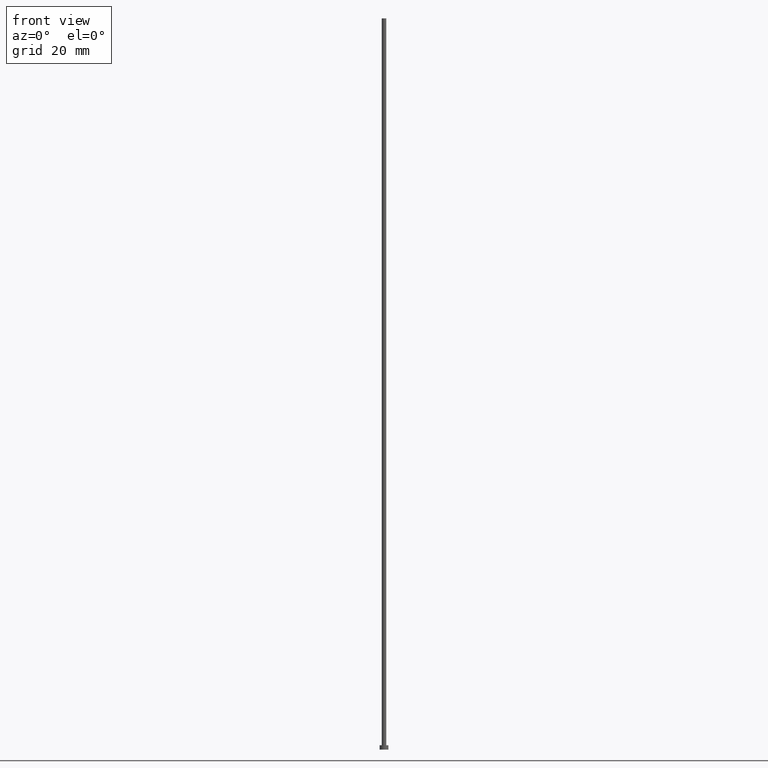
[diagram: clean part render]
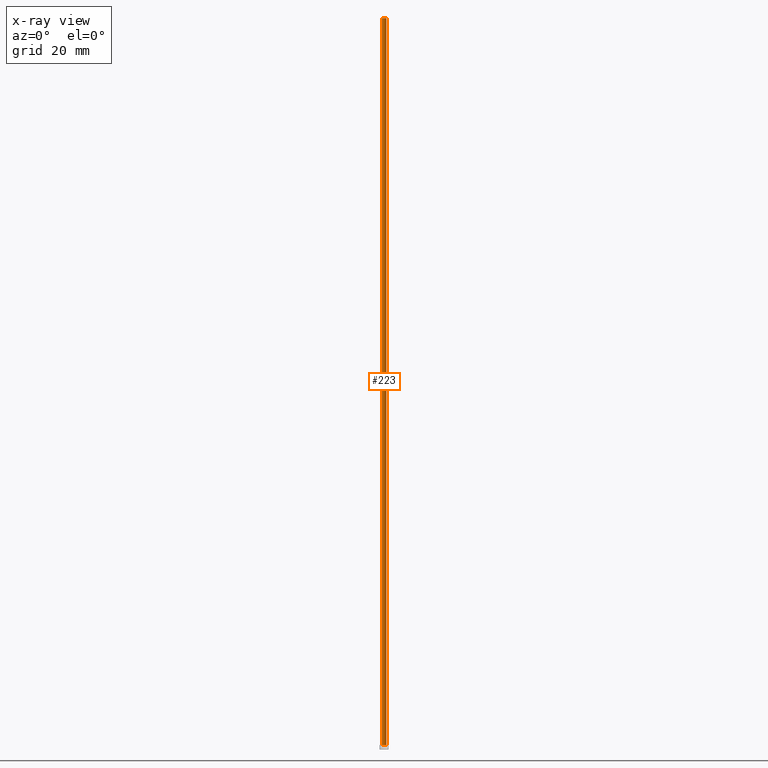
[diagram: x-ray — body ghosted, one internal face saturated and labeled with its STEP entity id]
A machine part, front view, then the same camera in x-ray: the body is ghosted and one INTERNAL B-rep face — a face not visible from any outside direction — is saturated and labeled: STEP entity #223.
In plain terms, the highlighted cylindrical surface (edge-blend (fillet) strip) has radius 0.75 mm, axis along (-0, -0, -1).
Its self-contained STEP definition (entity closure, byte-faithful):
#3 = ORIENTED_EDGE ( 'NONE', *, *, #250, .T. ) ;
#8 = DIRECTION ( 'NONE',  ( 1.000000000000000000, 0.000000000000000000, 0.000000000000000000 ) ) ;
#17 = CARTESIAN_POINT ( 'NONE',  ( 0.7500000000000001110, 9.184850993605149670E-17, 1.500000000000000000 ) ) ;
#20 = CARTESIAN_POINT ( 'NONE',  ( -0.7500000000000001110, 0.000000000000000000, 250.0000000000000000 ) ) ;
#25 = EDGE_LOOP ( 'NONE', ( #44, #3, #166, #237 ) ) ;
#37 = DIRECTION ( 'NONE',  ( 1.000000000000000000, 0.000000000000000000, 0.000000000000000000 ) ) ;
#44 = ORIENTED_EDGE ( 'NONE', *, *, #227, .F. ) ;
#60 = CARTESIAN_POINT ( 'NONE',  ( -0.7500000000000001110, 0.000000000000000000, 1.500000000000000000 ) ) ;
#68 = VECTOR ( 'NONE', #112, 1000.000000000000000 ) ;
#69 = VERTEX_POINT ( 'NONE', #209 ) ;
#71 = CARTESIAN_POINT ( 'NONE',  ( 0.000000000000000000, 0.000000000000000000, 250.0000000000000000 ) ) ;
#76 = EDGE_CURVE ( 'NONE', #168, #100, #118, .T. ) ;
#78 = VERTEX_POINT ( 'NONE', #80 ) ;
#80 = CARTESIAN_POINT ( 'NONE',  ( -0.7500000000000001110, 0.000000000000000000, 250.0000000000000000 ) ) ;
#85 = CARTESIAN_POINT ( 'NONE',  ( 0.000000000000000000, 0.000000000000000000, 1.500000000000000000 ) ) ;
#95 = EDGE_CURVE ( 'NONE', #78, #100, #247, .T. ) ;
#100 = VERTEX_POINT ( 'NONE', #60 ) ;
#103 = AXIS2_PLACEMENT_3D ( 'NONE', #85, #127, #8 ) ;
#112 = DIRECTION ( 'NONE',  ( -0.000000000000000000, -0.000000000000000000, -1.000000000000000000 ) ) ;
#118 = CIRCLE ( 'NONE', #103, 0.7500000000000001110 ) ;
#127 = DIRECTION ( 'NONE',  ( 0.000000000000000000, 0.000000000000000000, 1.000000000000000000 ) ) ;
#129 = VECTOR ( 'NONE', #150, 1000.000000000000000 ) ;
#135 = CARTESIAN_POINT ( 'NONE',  ( 0.000000000000000000, 0.000000000000000000, 250.0000000000000000 ) ) ;
#136 = LINE ( 'NONE', #215, #68 ) ;
#138 = AXIS2_PLACEMENT_3D ( 'NONE', #71, #235, #37 ) ;
#150 = DIRECTION ( 'NONE',  ( -0.000000000000000000, -0.000000000000000000, -1.000000000000000000 ) ) ;
#152 = CYLINDRICAL_SURFACE ( 'NONE', #248, 0.7500000000000001110 ) ;
#156 = CIRCLE ( 'NONE', #138, 0.7500000000000001110 ) ;
#166 = ORIENTED_EDGE ( 'NONE', *, *, #76, .T. ) ;
#168 = VERTEX_POINT ( 'NONE', #17 ) ;
#175 = FACE_OUTER_BOUND ( 'NONE', #25, .T. ) ;
#195 = DIRECTION ( 'NONE',  ( -1.000000000000000000, 0.000000000000000000, 0.000000000000000000 ) ) ;
#209 = CARTESIAN_POINT ( 'NONE',  ( 0.7500000000000001110, 9.184850993605149670E-17, 250.0000000000000000 ) ) ;
#215 = CARTESIAN_POINT ( 'NONE',  ( 0.7500000000000001110, 9.184850993605149670E-17, 250.0000000000000000 ) ) ;
#218 = DIRECTION ( 'NONE',  ( -0.000000000000000000, -0.000000000000000000, -1.000000000000000000 ) ) ;
#223 = ADVANCED_FACE ( 'NONE', ( #175 ), #152, .T. ) ;
#227 = EDGE_CURVE ( 'NONE', #69, #78, #156, .T. ) ;
#235 = DIRECTION ( 'NONE',  ( 0.000000000000000000, 0.000000000000000000, 1.000000000000000000 ) ) ;
#237 = ORIENTED_EDGE ( 'NONE', *, *, #95, .F. ) ;
#247 = LINE ( 'NONE', #20, #129 ) ;
#248 = AXIS2_PLACEMENT_3D ( 'NONE', #135, #218, #195 ) ;
#250 = EDGE_CURVE ( 'NONE', #69, #168, #136, .T. ) ;